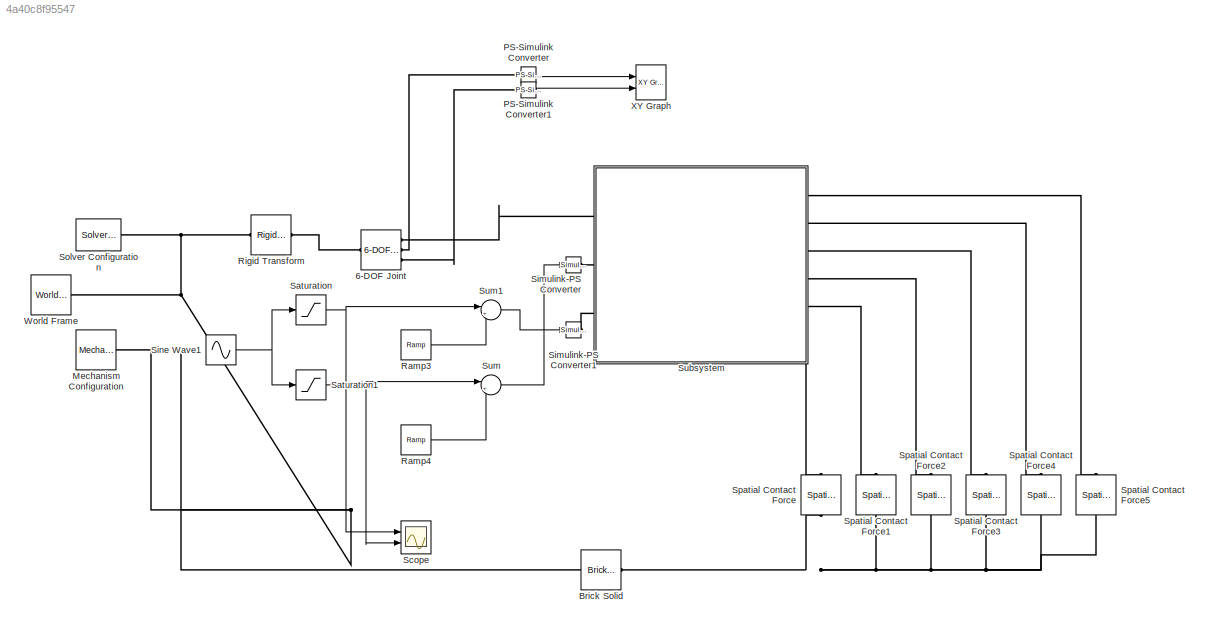
MODEL slx_4a40c8f95547
KIND model
CONFIG AbsTol = auto
CONFIG EnableMultiTasking = off
CONFIG FixedStep = 0.001
CONFIG MaxStep = auto
CONFIG MinStep = auto
CONFIG RelTol = 1e-3
CONFIG SampleTimeConstraint = Unconstrained
CONFIG SolverName = FixedStepAuto
CONFIG StartTime = 0.0
CONFIG StopTime = 20
BLOCK [Reference] 6-DOF Joint  REF=sm_lib/Joints/6-DOF Joint
  Ports = [0, 0, 0, 0, 0, 1, 3]
  SourceBlock = sm_lib/Joints/6-DOF Joint
  SourceProductBaseCode = MS
  SourceType = 6-DOF Joint
BLOCK [Reference] Brick Solid  REF=sm_lib/Body Elements/Brick Solid
  NameLocation = top
  Ports = [0, 0, 0, 0, 0, 1, 1]
  SourceBlock = sm_lib/Body Elements/Brick Solid
  SourceProductBaseCode = MS
  SourceType = Brick Solid
BLOCK [Reference] Mechanism Configuration  REF=sm_lib/Utilities/Mechanism
Configuration
  Ports = [0, 0, 0, 0, 0, 0, 1]
  SourceBlock = sm_lib/Utilities/Mechanism\nConfiguration
  SourceProductBaseCode = MS
  SourceType = Mechanism\nConfiguration
BLOCK [Reference] PS-Simulink Converter  REF=nesl_utility/PS-Simulink
Converter
  Ports = [0, 1, 0, 0, 0, 1]
  SourceBlock = nesl_utility/PS-Simulink\nConverter
  SourceProductBaseCode = SS
  SourceType = PS-Simulink\nConverter
BLOCK [Reference] PS-Simulink Converter1  REF=nesl_utility/PS-Simulink
Converter
  Ports = [0, 1, 0, 0, 0, 1]
  SourceBlock = nesl_utility/PS-Simulink\nConverter
  SourceProductBaseCode = SS
  SourceType = PS-Simulink\nConverter
BLOCK [Reference] Ramp3  REF=simulink/Sources/Ramp
  Ports = [0, 1]
  SourceBlock = simulink/Sources/Ramp
  SourceProductBaseCode = SL
  SourceType = Ramp
BLOCK [Reference] Ramp4  REF=simulink/Sources/Ramp
  Ports = [0, 1]
  SourceBlock = simulink/Sources/Ramp
  SourceProductBaseCode = SL
  SourceType = Ramp
BLOCK [Reference] Rigid Transform  REF=sm_lib/Frames and
Transforms/Rigid
Transform
  NameLocation = top
  Ports = [0, 0, 0, 0, 0, 1, 1]
  SourceBlock = sm_lib/Frames and\nTransforms/Rigid\nTransform
  SourceProductBaseCode = MS
  SourceType = Rigid\nTransform
BLOCK [Saturate] Saturation
  LowerLimit = 0
  UpperLimit = 10
BLOCK [Saturate] Saturation1
  LowerLimit = -10
  UpperLimit = 0
BLOCK [Scope] Scope
  Floating = off
  NumInputPorts = 2
  Ports = [2]
  ScopeSpecificationString = Simulink.scopes.TimeScopeBlockCfg('CurrentConfiguration', extmgr.ConfigurationSet(extmgr.Configuration('Core','General UI',true),extmgr.Configuration('Core','Source UI',true),extmgr.Configuration('Sources','WiredSimulink',true,'DataLoggingVariableName','ScopeData1'),extmgr.Configuration('Visuals','Time Domain',true,'SerializedDisplays',{struct('MinYLimReal','-0.38407','MaxYLimReal','1.15238','YLab...<+1445ch>
BLOCK [Reference] Simulink-PS Converter  REF=nesl_utility/Simulink-PS
Converter
  Ports = [1, 0, 0, 0, 0, 0, 1]
  SourceBlock = nesl_utility/Simulink-PS\nConverter
  SourceProductBaseCode = SS
  SourceType = Simulink-PS\nConverter
BLOCK [Reference] Simulink-PS Converter1  REF=nesl_utility/Simulink-PS
Converter
  Ports = [1, 0, 0, 0, 0, 0, 1]
  SourceBlock = nesl_utility/Simulink-PS\nConverter
  SourceProductBaseCode = SS
  SourceType = Simulink-PS\nConverter
BLOCK [Sin] Sine Wave1
  Amplitude = 10
  Ports = [0, 1]
  SampleTime = 0
BLOCK [Reference] Solver Configuration  REF=nesl_utility/Solver
Configuration
  Ports = [0, 0, 0, 0, 0, 0, 1]
  SourceBlock = nesl_utility/Solver\nConfiguration
  SourceProductBaseCode = SS
  SourceType = Solver\nConfiguration
BLOCK [Reference] Spatial Contact Force  REF=sm_lib/Forces and
Torques/Spatial
Contact Force
  NameLocation = right
  Ports = [0, 0, 0, 0, 0, 1, 1]
  SourceBlock = sm_lib/Forces and\nTorques/Spatial\nContact Force
  SourceProductBaseCode = MS
  SourceType = Spatial\nContact Force
BLOCK [Reference] Spatial Contact Force1  REF=sm_lib/Forces and
Torques/Spatial
Contact Force
  NameLocation = right
  Ports = [0, 0, 0, 0, 0, 1, 1]
  SourceBlock = sm_lib/Forces and\nTorques/Spatial\nContact Force
  SourceProductBaseCode = MS
  SourceType = Spatial\nContact Force
BLOCK [Reference] Spatial Contact Force2  REF=sm_lib/Forces and
Torques/Spatial
Contact Force
  NameLocation = right
  Ports = [0, 0, 0, 0, 0, 1, 1]
  SourceBlock = sm_lib/Forces and\nTorques/Spatial\nContact Force
  SourceProductBaseCode = MS
  SourceType = Spatial\nContact Force
BLOCK [Reference] Spatial Contact Force3  REF=sm_lib/Forces and
Torques/Spatial
Contact Force
  NameLocation = right
  Ports = [0, 0, 0, 0, 0, 1, 1]
  SourceBlock = sm_lib/Forces and\nTorques/Spatial\nContact Force
  SourceProductBaseCode = MS
  SourceType = Spatial\nContact Force
BLOCK [Reference] Spatial Contact Force4  REF=sm_lib/Forces and
Torques/Spatial
Contact Force
  NameLocation = right
  Ports = [0, 0, 0, 0, 0, 1, 1]
  SourceBlock = sm_lib/Forces and\nTorques/Spatial\nContact Force
  SourceProductBaseCode = MS
  SourceType = Spatial\nContact Force
BLOCK [Reference] Spatial Contact Force5  REF=sm_lib/Forces and
Torques/Spatial
Contact Force
  NameLocation = right
  Ports = [0, 0, 0, 0, 0, 1, 1]
  SourceBlock = sm_lib/Forces and\nTorques/Spatial\nContact Force
  SourceProductBaseCode = MS
  SourceType = Spatial\nContact Force
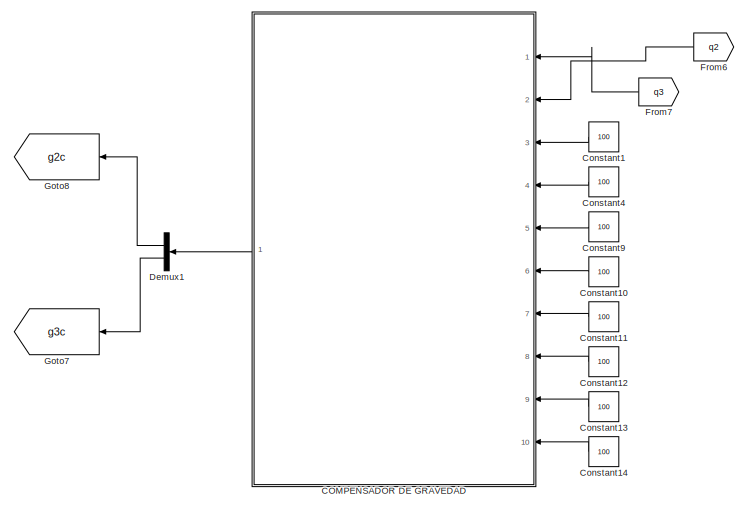
[diagram: Subsystem - part 1/6, top center region]
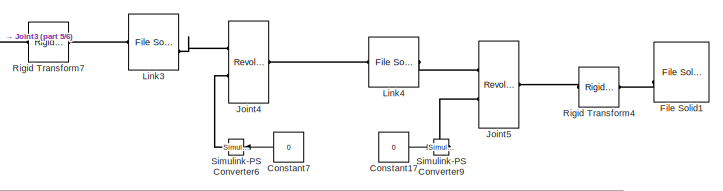
[diagram: Subsystem - part 2/6, top right region]
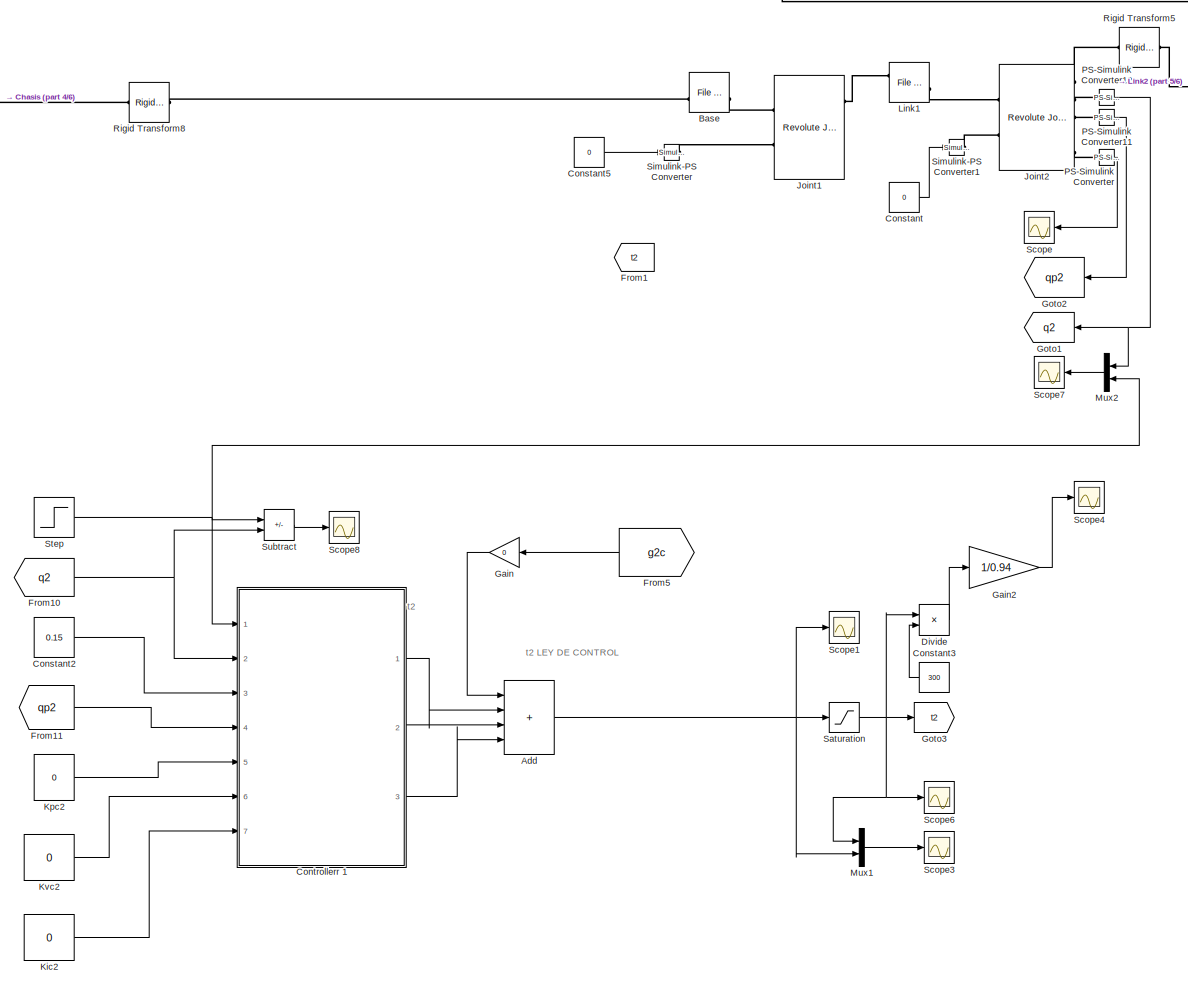
[diagram: Subsystem - part 3/6, central region]
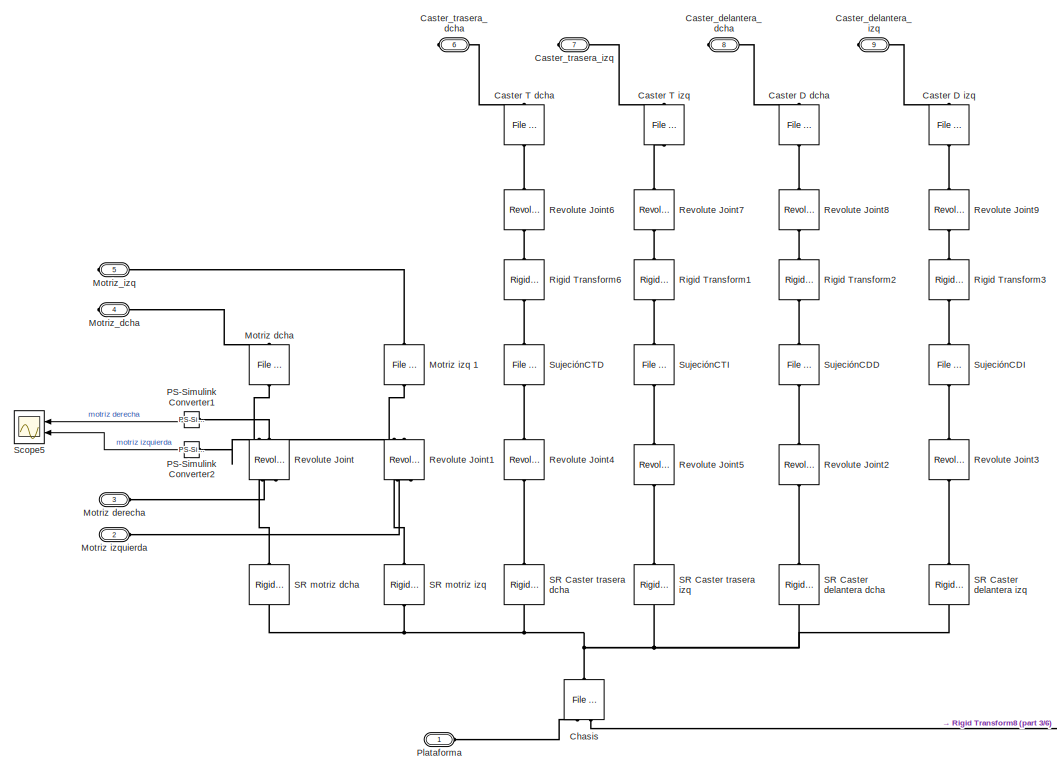
[diagram: Subsystem - part 4/6, central region]
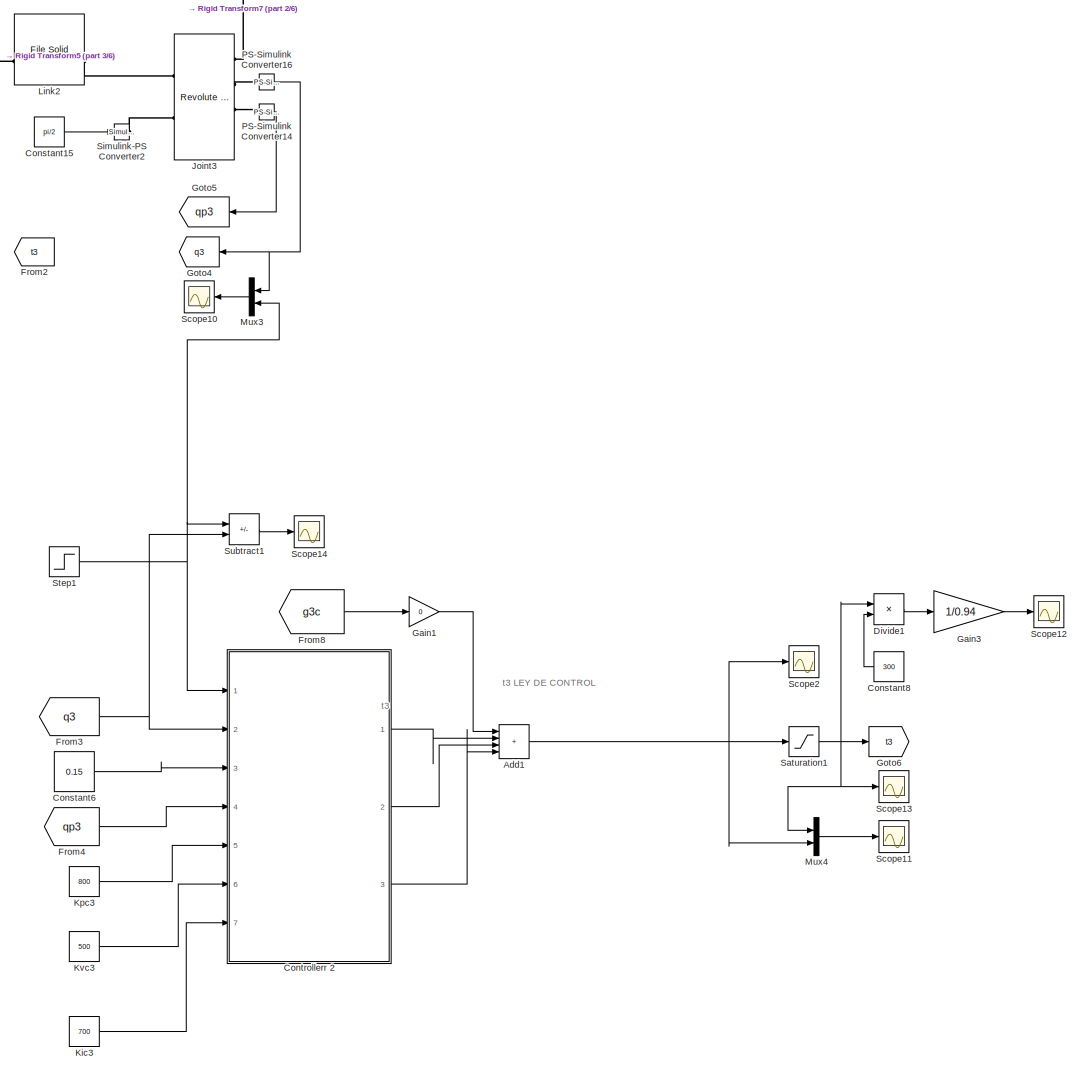
[diagram: Subsystem - part 5/6, middle right region]
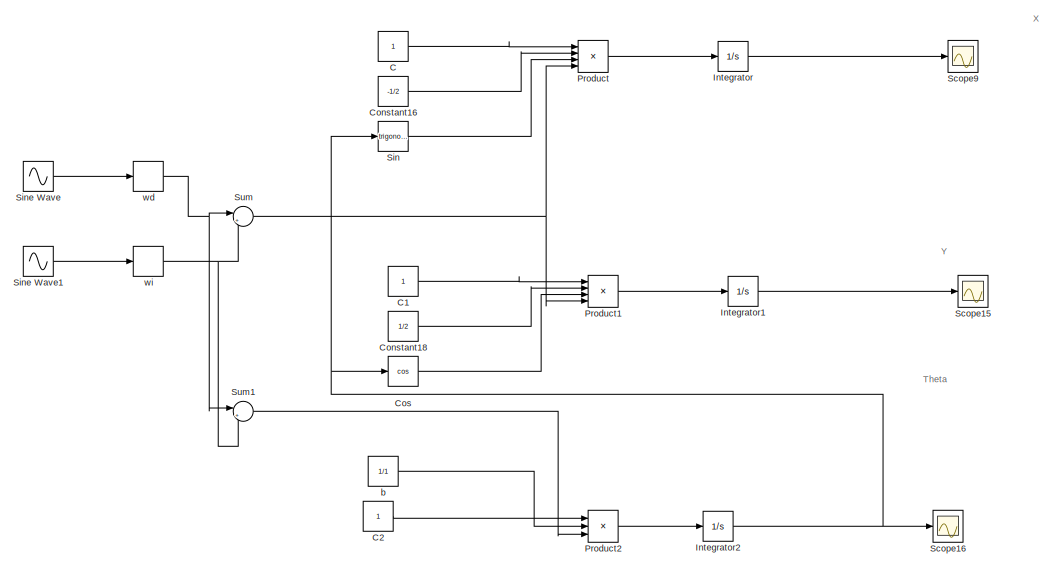
[diagram: Subsystem - part 6/6, bottom left region]
BLOCK [SubSystem] Subsystem
  Ports = [0, 0, 0, 0, 0, 3, 6]
  RequestExecContextInheritance = off
BLOCK [Sum] Subsystem/Add
  IconShape = rectangular
  Inputs = ++++
  Ports = [4, 1]
BLOCK [Sum] Subsystem/Add1
  IconShape = rectangular
  Inputs = ++++
  Ports = [4, 1]
BLOCK [Reference] Subsystem/Base  REF=sm_lib/Body Elements/File Solid
  Ports = [0, 0, 0, 0, 0, 2, 2]
  SourceBlock = sm_lib/Body Elements/File Solid
  SourceProductBaseCode = MS
  SourceType = File Solid
BLOCK [Constant] Subsystem/C
BLOCK [Constant] Subsystem/C1
BLOCK [Constant] Subsystem/C2
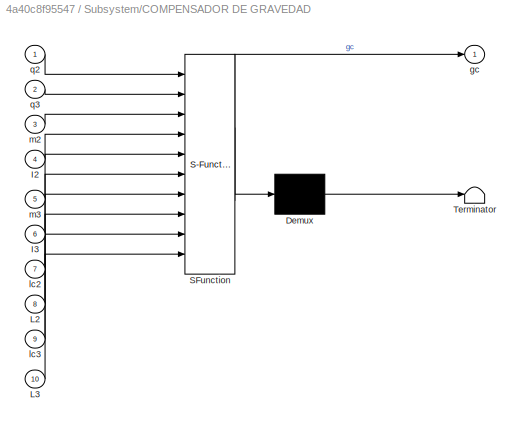
BLOCK [SubSystem] Subsystem/COMPENSADOR DE GRAVEDAD
  ErrorFcn = Stateflow.Translate.translate
  PermitHierarchicalResolution = ExplicitOnly
  Ports = [10, 1]
  RequestExecContextInheritance = off
  SFBlockType = MATLAB Function
  TreatAsAtomicUnit = on
BLOCK [Demux] Subsystem/COMPENSADOR DE GRAVEDAD/ Demux 
  Outputs = 1
  Ports = [1, 1]
BLOCK [S-Function] Subsystem/COMPENSADOR DE GRAVEDAD/ SFunction 
  EnableBusSupport = on
  FunctionName = sf_sfun
  PortCounts = [10 2]
  Ports = [10, 2]
  SFcnIsStateOwnerBlock = off
  SFunctionDeploymentMode = off
  Tag = Stateflow S-Function 1
BLOCK [Terminator] Subsystem/COMPENSADOR DE GRAVEDAD/ Terminator 
BLOCK [Inport] Subsystem/COMPENSADOR DE GRAVEDAD/I2
  Port = 4
BLOCK [Inport] Subsystem/COMPENSADOR DE GRAVEDAD/I3
  Port = 6
BLOCK [Inport] Subsystem/COMPENSADOR DE GRAVEDAD/L2
  Port = 8
BLOCK [Inport] Subsystem/COMPENSADOR DE GRAVEDAD/L3
  Port = 10
BLOCK [Outport] Subsystem/COMPENSADOR DE GRAVEDAD/gc
  VectorParamsAs1DForOutWhenUnconnected = off
BLOCK [Inport] Subsystem/COMPENSADOR DE GRAVEDAD/lc2
  Port = 7
BLOCK [Inport] Subsystem/COMPENSADOR DE GRAVEDAD/lc3
  Port = 9
BLOCK [Inport] Subsystem/COMPENSADOR DE GRAVEDAD/m2
  Port = 3
BLOCK [Inport] Subsystem/COMPENSADOR DE GRAVEDAD/m3
  Port = 5
BLOCK [Inport] Subsystem/COMPENSADOR DE GRAVEDAD/q2
BLOCK [Inport] Subsystem/COMPENSADOR DE GRAVEDAD/q3
  Port = 2
BLOCK [Reference] Subsystem/Caster D dcha  REF=sm_lib/Body Elements/File Solid
  NameLocation = right
  Ports = [0, 0, 0, 0, 0, 1, 1]
  SourceBlock = sm_lib/Body Elements/File Solid
  SourceProductBaseCode = MS
  SourceType = File Solid
BLOCK [Reference] Subsystem/Caster D izq  REF=sm_lib/Body Elements/File Solid
  NameLocation = right
  Ports = [0, 0, 0, 0, 0, 1, 1]
  SourceBlock = sm_lib/Body Elements/File Solid
  SourceProductBaseCode = MS
  SourceType = File Solid
BLOCK [Reference] Subsystem/Caster T dcha  REF=sm_lib/Body Elements/File Solid
  NameLocation = right
  Ports = [0, 0, 0, 0, 0, 1, 1]
  SourceBlock = sm_lib/Body Elements/File Solid
  SourceProductBaseCode = MS
  SourceType = File Solid
BLOCK [Reference] Subsystem/Caster T izq   REF=sm_lib/Body Elements/File Solid
  NameLocation = right
  Ports = [0, 0, 0, 0, 0, 1, 1]
  SourceBlock = sm_lib/Body Elements/File Solid
  SourceProductBaseCode = MS
  SourceType = File Solid
BLOCK [PMIOPort] Subsystem/Caster_delantera_dcha
  Port = 8
  Side = Right
BLOCK [PMIOPort] Subsystem/Caster_delantera_izq
  Port = 9
  Side = Right
BLOCK [PMIOPort] Subsystem/Caster_trasera_dcha
  Port = 6
  Side = Right
BLOCK [PMIOPort] Subsystem/Caster_trasera_izq
  Port = 7
  Side = Right
BLOCK [Reference] Subsystem/Chasis  REF=sm_lib/Body Elements/File Solid
  NameLocation = right
  Ports = [0, 0, 0, 0, 0, 2, 1]
  SourceBlock = sm_lib/Body Elements/File Solid
  SourceProductBaseCode = MS
  SourceType = File Solid
BLOCK [Constant] Subsystem/Constant
  Value = 0
BLOCK [Constant] Subsystem/Constant1
  Value = 100
BLOCK [Constant] Subsystem/Constant10
  Value = 100
BLOCK [Constant] Subsystem/Constant11
  Value = 100
BLOCK [Constant] Subsystem/Constant12
  Value = 100
BLOCK [Constant] Subsystem/Constant13
  Value = 100
BLOCK [Constant] Subsystem/Constant14
  Value = 100
BLOCK [Constant] Subsystem/Constant15
  Value = pi/2
BLOCK [Constant] Subsystem/Constant16
  Value = -1/2
BLOCK [Constant] Subsystem/Constant17
  Value = 0
BLOCK [Constant] Subsystem/Constant18
  Value = 1/2
BLOCK [Constant] Subsystem/Constant2
  Value = 0.15
BLOCK [Constant] Subsystem/Constant3
  Value = 300
BLOCK [Constant] Subsystem/Constant4
  Value = 100
BLOCK [Constant] Subsystem/Constant5
  Value = 0
BLOCK [Constant] Subsystem/Constant6
  Value = 0.15
BLOCK [Constant] Subsystem/Constant7
  Value = 0
BLOCK [Constant] Subsystem/Constant8
  Value = 300
BLOCK [Constant] Subsystem/Constant9
  Value = 100
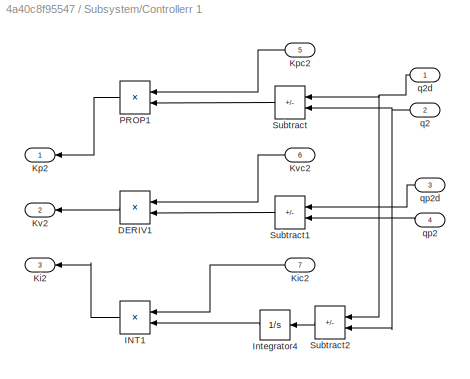
BLOCK [SubSystem] Subsystem/Controllerr 1
  Ports = [7, 3]
  RequestExecContextInheritance = off
BLOCK [Product] Subsystem/Controllerr 1/DERIV1
  Ports = [2, 1]
BLOCK [Product] Subsystem/Controllerr 1/INT1
  Ports = [2, 1]
BLOCK [Integrator] Subsystem/Controllerr 1/Integrator4
  Ports = [1, 1]
BLOCK [Outport] Subsystem/Controllerr 1/Ki2
  Port = 3
  VectorParamsAs1DForOutWhenUnconnected = off
BLOCK [Inport] Subsystem/Controllerr 1/Kic2
  Port = 7
BLOCK [Outport] Subsystem/Controllerr 1/Kp2
  VectorParamsAs1DForOutWhenUnconnected = off
BLOCK [Inport] Subsystem/Controllerr 1/Kpc2
  Port = 5
BLOCK [Outport] Subsystem/Controllerr 1/Kv2
  Port = 2
  VectorParamsAs1DForOutWhenUnconnected = off
BLOCK [Inport] Subsystem/Controllerr 1/Kvc2
  Port = 6
BLOCK [Product] Subsystem/Controllerr 1/PROP1
  Ports = [2, 1]
BLOCK [Sum] Subsystem/Controllerr 1/Subtract
  IconShape = rectangular
  Inputs = +-
  Ports = [2, 1]
BLOCK [Sum] Subsystem/Controllerr 1/Subtract1
  IconShape = rectangular
  Inputs = +-
  Ports = [2, 1]
BLOCK [Sum] Subsystem/Controllerr 1/Subtract2
  IconShape = rectangular
  Inputs = +-
  Ports = [2, 1]
BLOCK [Inport] Subsystem/Controllerr 1/q2
  Port = 2
BLOCK [Inport] Subsystem/Controllerr 1/q2d
BLOCK [Inport] Subsystem/Controllerr 1/qp2
  Port = 4
BLOCK [Inport] Subsystem/Controllerr 1/qp2d
  Port = 3
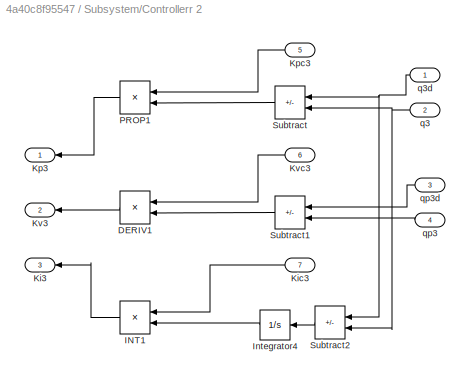
BLOCK [SubSystem] Subsystem/Controllerr 2
  Ports = [7, 3]
  RequestExecContextInheritance = off
BLOCK [Product] Subsystem/Controllerr 2/DERIV1
  Ports = [2, 1]
BLOCK [Product] Subsystem/Controllerr 2/INT1
  Ports = [2, 1]
BLOCK [Integrator] Subsystem/Controllerr 2/Integrator4
  Ports = [1, 1]
BLOCK [Outport] Subsystem/Controllerr 2/Ki3
  Port = 3
  VectorParamsAs1DForOutWhenUnconnected = off
BLOCK [Inport] Subsystem/Controllerr 2/Kic3
  Port = 7
BLOCK [Outport] Subsystem/Controllerr 2/Kp3
  VectorParamsAs1DForOutWhenUnconnected = off
BLOCK [Inport] Subsystem/Controllerr 2/Kpc3
  Port = 5
BLOCK [Outport] Subsystem/Controllerr 2/Kv3
  Port = 2
  VectorParamsAs1DForOutWhenUnconnected = off
BLOCK [Inport] Subsystem/Controllerr 2/Kvc3
  Port = 6
BLOCK [Product] Subsystem/Controllerr 2/PROP1
  Ports = [2, 1]
BLOCK [Sum] Subsystem/Controllerr 2/Subtract
  IconShape = rectangular
  Inputs = +-
  Ports = [2, 1]
BLOCK [Sum] Subsystem/Controllerr 2/Subtract1
  IconShape = rectangular
  Inputs = +-
  Ports = [2, 1]
BLOCK [Sum] Subsystem/Controllerr 2/Subtract2
  IconShape = rectangular
  Inputs = +-
  Ports = [2, 1]
BLOCK [Inport] Subsystem/Controllerr 2/q3
  Port = 2
BLOCK [Inport] Subsystem/Controllerr 2/q3d
BLOCK [Inport] Subsystem/Controllerr 2/qp3
  Port = 4
BLOCK [Inport] Subsystem/Controllerr 2/qp3d
  Port = 3
BLOCK [Trigonometry] Subsystem/Cos
  Operator = cos
  Ports = [1, 1]
BLOCK [Demux] Subsystem/Demux1
  Outputs = 2
  Ports = [1, 2]
BLOCK [Product] Subsystem/Divide
  Inputs = */
  Ports = [2, 1]
BLOCK [Product] Subsystem/Divide1
  Inputs = */
  Ports = [2, 1]
BLOCK [Reference] Subsystem/File Solid1  REF=sm_lib/Body Elements/File Solid
  Ports = [0, 0, 0, 0, 0, 2, 1]
  SourceBlock = sm_lib/Body Elements/File Solid
  SourceProductBaseCode = MS
  SourceType = File Solid
BLOCK [From] Subsystem/From1
  Commented = on
  GotoTag = t2
BLOCK [From] Subsystem/From10
  GotoTag = q2
BLOCK [From] Subsystem/From11
  GotoTag = qp2
BLOCK [From] Subsystem/From2
  Commented = on
  GotoTag = t3
BLOCK [From] Subsystem/From3
  GotoTag = q3
BLOCK [From] Subsystem/From4
  GotoTag = qp3
BLOCK [From] Subsystem/From5
  GotoTag = g2c
BLOCK [From] Subsystem/From6
  GotoTag = q2
BLOCK [From] Subsystem/From7
  GotoTag = q3
BLOCK [From] Subsystem/From8
  GotoTag = g3c
BLOCK [Gain] Subsystem/Gain
  Gain = 0
BLOCK [Gain] Subsystem/Gain1
  Gain = 0
BLOCK [Gain] Subsystem/Gain2
  Gain = 1/0.94
BLOCK [Gain] Subsystem/Gain3
  Gain = 1/0.94
BLOCK [Goto] Subsystem/Goto1
  GotoTag = q2
  NameLocation = top
BLOCK [Goto] Subsystem/Goto2
  GotoTag = qp2
  NameLocation = top
BLOCK [Goto] Subsystem/Goto3
  GotoTag = t2
BLOCK [Goto] Subsystem/Goto4
  GotoTag = q3
  NameLocation = top
BLOCK [Goto] Subsystem/Goto5
  GotoTag = qp3
  NameLocation = top
BLOCK [Goto] Subsystem/Goto6
  GotoTag = t3
BLOCK [Goto] Subsystem/Goto7
  GotoTag = g3c
BLOCK [Goto] Subsystem/Goto8
  GotoTag = g2c
BLOCK [Integrator] Subsystem/Integrator
  Ports = [1, 1]
BLOCK [Integrator] Subsystem/Integrator1
  Ports = [1, 1]
BLOCK [Integrator] Subsystem/Integrator2
  Ports = [1, 1]
BLOCK [Reference] Subsystem/Joint1  REF=sm_lib/Joints/Revolute Joint
  Ports = [0, 0, 0, 0, 0, 2, 3]
  SourceBlock = sm_lib/Joints/Revolute Joint
  SourceProductBaseCode = MS
  SourceType = Revolute Joint
BLOCK [Reference] Subsystem/Joint2  REF=sm_lib/Joints/Revolute Joint
  Ports = [0, 0, 0, 0, 0, 2, 5]
  SourceBlock = sm_lib/Joints/Revolute Joint
  SourceProductBaseCode = MS
  SourceType = Revolute Joint
BLOCK [Reference] Subsystem/Joint3  REF=sm_lib/Joints/Revolute Joint
  Ports = [0, 0, 0, 0, 0, 2, 4]
  SourceBlock = sm_lib/Joints/Revolute Joint
  SourceProductBaseCode = MS
  SourceType = Revolute Joint
BLOCK [Reference] Subsystem/Joint4  REF=sm_lib/Joints/Revolute Joint
  Ports = [0, 0, 0, 0, 0, 2, 1]
  SourceBlock = sm_lib/Joints/Revolute Joint
  SourceProductBaseCode = MS
  SourceType = Revolute Joint
BLOCK [Reference] Subsystem/Joint5  REF=sm_lib/Joints/Revolute Joint
  Ports = [0, 0, 0, 0, 0, 2, 1]
  SourceBlock = sm_lib/Joints/Revolute Joint
  SourceProductBaseCode = MS
  SourceType = Revolute Joint
BLOCK [Constant] Subsystem/Kic2
  Value = 0
BLOCK [Constant] Subsystem/Kic3
  Value = 700
BLOCK [Constant] Subsystem/Kpc2
  Value = 0
BLOCK [Constant] Subsystem/Kpc3
  Value = 800
BLOCK [Constant] Subsystem/Kvc2
  Value = 0
BLOCK [Constant] Subsystem/Kvc3
  Value = 500
BLOCK [Reference] Subsystem/Link1  REF=sm_lib/Body Elements/File Solid
  Ports = [0, 0, 0, 0, 0, 2, 2]
  SourceBlock = sm_lib/Body Elements/File Solid
  SourceProductBaseCode = MS
  SourceType = File Solid
BLOCK [Reference] Subsystem/Link2  REF=sm_lib/Body Elements/File Solid
  NameLocation = top
  Ports = [0, 0, 0, 0, 0, 2, 2]
  SourceBlock = sm_lib/Body Elements/File Solid
  SourceProductBaseCode = MS
  SourceType = File Solid
BLOCK [Reference] Subsystem/Link3  REF=sm_lib/Body Elements/File Solid
  NameLocation = top
  Ports = [0, 0, 0, 0, 0, 2, 1]
  SourceBlock = sm_lib/Body Elements/File Solid
  SourceProductBaseCode = MS
  SourceType = File Solid
BLOCK [Reference] Subsystem/Link4  REF=sm_lib/Body Elements/File Solid
  NameLocation = top
  Ports = [0, 0, 0, 0, 0, 1, 1]
  SourceBlock = sm_lib/Body Elements/File Solid
  SourceProductBaseCode = MS
  SourceType = File Solid
BLOCK [Reference] Subsystem/Motriz dcha   REF=sm_lib/Body Elements/File Solid
  NameLocation = left
  Ports = [0, 0, 0, 0, 0, 1, 1]
  SourceBlock = sm_lib/Body Elements/File Solid
  SourceProductBaseCode = MS
  SourceType = File Solid
BLOCK [PMIOPort] Subsystem/Motriz derecha
  Port = 3
  Side = Left
BLOCK [Reference] Subsystem/Motriz izq 1  REF=sm_lib/Body Elements/File Solid
  NameLocation = left
  Ports = [0, 0, 0, 0, 0, 1, 1]
  SourceBlock = sm_lib/Body Elements/File Solid
  SourceProductBaseCode = MS
  SourceType = File Solid
BLOCK [PMIOPort] Subsystem/Motriz izquierda
  Port = 2
  Side = Left
BLOCK [PMIOPort] Subsystem/Motriz_dcha
  Port = 4
  Side = Right
BLOCK [PMIOPort] Subsystem/Motriz_izq
  Port = 5
  Side = Right
BLOCK [Mux] Subsystem/Mux1
  DisplayOption = bar
  Inputs = 2
  Ports = [2, 1]
BLOCK [Mux] Subsystem/Mux2
  DisplayOption = bar
  Inputs = 2
  NameLocation = top
  Ports = [2, 1]
BLOCK [Mux] Subsystem/Mux3
  DisplayOption = bar
  Inputs = 2
  NameLocation = top
  Ports = [2, 1]
BLOCK [Mux] Subsystem/Mux4
  DisplayOption = bar
  Inputs = 2
  Ports = [2, 1]
BLOCK [Reference] Subsystem/PS-Simulink Converter  REF=nesl_utility/PS-Simulink
Converter
  Ports = [0, 1, 0, 0, 0, 1]
  SourceBlock = nesl_utility/PS-Simulink\nConverter
  SourceProductBaseCode = SS
  SourceType = PS-Simulink\nConverter
BLOCK [Reference] Subsystem/PS-Simulink Converter1  REF=nesl_utility/PS-Simulink
Converter
  NameLocation = top
  Ports = [0, 1, 0, 0, 0, 1]
  SourceBlock = nesl_utility/PS-Simulink\nConverter
  SourceProductBaseCode = SS
  SourceType = PS-Simulink\nConverter
BLOCK [Reference] Subsystem/PS-Simulink Converter11  REF=nesl_utility/PS-Simulink
Converter
  Ports = [0, 1, 0, 0, 0, 1]
  SourceBlock = nesl_utility/PS-Simulink\nConverter
  SourceProductBaseCode = SS
  SourceType = PS-Simulink\nConverter
BLOCK [Reference] Subsystem/PS-Simulink Converter12  REF=nesl_utility/PS-Simulink
Converter
  Ports = [0, 1, 0, 0, 0, 1]
  SourceBlock = nesl_utility/PS-Simulink\nConverter
  SourceProductBaseCode = SS
  SourceType = PS-Simulink\nConverter
BLOCK [Reference] Subsystem/PS-Simulink Converter14  REF=nesl_utility/PS-Simulink
Converter
  Ports = [0, 1, 0, 0, 0, 1]
  SourceBlock = nesl_utility/PS-Simulink\nConverter
  SourceProductBaseCode = SS
  SourceType = PS-Simulink\nConverter
BLOCK [Reference] Subsystem/PS-Simulink Converter16  REF=nesl_utility/PS-Simulink
Converter
  NameLocation = left
  Ports = [0, 1, 0, 0, 0, 1]
  SourceBlock = nesl_utility/PS-Simulink\nConverter
  SourceProductBaseCode = SS
  SourceType = PS-Simulink\nConverter
BLOCK [Reference] Subsystem/PS-Simulink Converter2  REF=nesl_utility/PS-Simulink
Converter
  NameLocation = top
  Ports = [0, 1, 0, 0, 0, 1]
  SourceBlock = nesl_utility/PS-Simulink\nConverter
  SourceProductBaseCode = SS
  SourceType = PS-Simulink\nConverter
BLOCK [PMIOPort] Subsystem/Plataforma
  Side = Left
BLOCK [Product] Subsystem/Product
  Inputs = 4
  Ports = [4, 1]
BLOCK [Product] Subsystem/Product1
  Inputs = 4
  Ports = [4, 1]
BLOCK [Product] Subsystem/Product2
  Inputs = 3
  Ports = [3, 1]
BLOCK [Reference] Subsystem/Revolute Joint  REF=sm_lib/Joints/Revolute Joint
  NameLocation = right
  Ports = [0, 0, 0, 0, 0, 2, 3]
  SourceBlock = sm_lib/Joints/Revolute Joint
  SourceProductBaseCode = MS
  SourceType = Revolute Joint
BLOCK [Reference] Subsystem/Revolute Joint1  REF=sm_lib/Joints/Revolute Joint
  NameLocation = right
  Ports = [0, 0, 0, 0, 0, 2, 3]
  SourceBlock = sm_lib/Joints/Revolute Joint
  SourceProductBaseCode = MS
  SourceType = Revolute Joint
BLOCK [Reference] Subsystem/Revolute Joint2  REF=sm_lib/Joints/Revolute Joint
  NameLocation = right
  Ports = [0, 0, 0, 0, 0, 1, 1]
  SourceBlock = sm_lib/Joints/Revolute Joint
  SourceProductBaseCode = MS
  SourceType = Revolute Joint
BLOCK [Reference] Subsystem/Revolute Joint3  REF=sm_lib/Joints/Revolute Joint
  NameLocation = right
  Ports = [0, 0, 0, 0, 0, 1, 1]
  SourceBlock = sm_lib/Joints/Revolute Joint
  SourceProductBaseCode = MS
  SourceType = Revolute Joint
BLOCK [Reference] Subsystem/Revolute Joint4  REF=sm_lib/Joints/Revolute Joint
  NameLocation = right
  Ports = [0, 0, 0, 0, 0, 1, 1]
  SourceBlock = sm_lib/Joints/Revolute Joint
  SourceProductBaseCode = MS
  SourceType = Revolute Joint
BLOCK [Reference] Subsystem/Revolute Joint5  REF=sm_lib/Joints/Revolute Joint
  NameLocation = right
  Ports = [0, 0, 0, 0, 0, 1, 1]
  SourceBlock = sm_lib/Joints/Revolute Joint
  SourceProductBaseCode = MS
  SourceType = Revolute Joint
BLOCK [Reference] Subsystem/Revolute Joint6  REF=sm_lib/Joints/Revolute Joint
  NameLocation = right
  Ports = [0, 0, 0, 0, 0, 1, 1]
  SourceBlock = sm_lib/Joints/Revolute Joint
  SourceProductBaseCode = MS
  SourceType = Revolute Joint
BLOCK [Reference] Subsystem/Revolute Joint7  REF=sm_lib/Joints/Revolute Joint
  NameLocation = right
  Ports = [0, 0, 0, 0, 0, 1, 1]
  SourceBlock = sm_lib/Joints/Revolute Joint
  SourceProductBaseCode = MS
  SourceType = Revolute Joint
BLOCK [Reference] Subsystem/Revolute Joint8  REF=sm_lib/Joints/Revolute Joint
  NameLocation = right
  Ports = [0, 0, 0, 0, 0, 1, 1]
  SourceBlock = sm_lib/Joints/Revolute Joint
  SourceProductBaseCode = MS
  SourceType = Revolute Joint
BLOCK [Reference] Subsystem/Revolute Joint9  REF=sm_lib/Joints/Revolute Joint
  NameLocation = right
  Ports = [0, 0, 0, 0, 0, 1, 1]
  SourceBlock = sm_lib/Joints/Revolute Joint
  SourceProductBaseCode = MS
  SourceType = Revolute Joint
BLOCK [Reference] Subsystem/Rigid Transform1  REF=sm_lib/Frames and
Transforms/Rigid
Transform
  NameLocation = right
  Ports = [0, 0, 0, 0, 0, 1, 1]
  SourceBlock = sm_lib/Frames and\nTransforms/Rigid\nTransform
  SourceProductBaseCode = MS
  SourceType = Rigid\nTransform
BLOCK [Reference] Subsystem/Rigid Transform2  REF=sm_lib/Frames and
Transforms/Rigid
Transform
  NameLocation = right
  Ports = [0, 0, 0, 0, 0, 1, 1]
  SourceBlock = sm_lib/Frames and\nTransforms/Rigid\nTransform
  SourceProductBaseCode = MS
  SourceType = Rigid\nTransform
BLOCK [Reference] Subsystem/Rigid Transform3  REF=sm_lib/Frames and
Transforms/Rigid
Transform
  NameLocation = right
  Ports = [0, 0, 0, 0, 0, 1, 1]
  SourceBlock = sm_lib/Frames and\nTransforms/Rigid\nTransform
  SourceProductBaseCode = MS
  SourceType = Rigid\nTransform
BLOCK [Reference] Subsystem/Rigid Transform4  REF=sm_lib/Frames and
Transforms/Rigid
Transform
  Ports = [0, 0, 0, 0, 0, 1, 1]
  SourceBlock = sm_lib/Frames and\nTransforms/Rigid\nTransform
  SourceProductBaseCode = MS
  SourceType = Rigid\nTransform
BLOCK [Reference] Subsystem/Rigid Transform5  REF=sm_lib/Frames and
Transforms/Rigid
Transform
  Ports = [0, 0, 0, 0, 0, 1, 1]
  SourceBlock = sm_lib/Frames and\nTransforms/Rigid\nTransform
  SourceProductBaseCode = MS
  SourceType = Rigid\nTransform
BLOCK [Reference] Subsystem/Rigid Transform6  REF=sm_lib/Frames and
Transforms/Rigid
Transform
  NameLocation = right
  Ports = [0, 0, 0, 0, 0, 1, 1]
  SourceBlock = sm_lib/Frames and\nTransforms/Rigid\nTransform
  SourceProductBaseCode = MS
  SourceType = Rigid\nTransform
BLOCK [Reference] Subsystem/Rigid Transform7  REF=sm_lib/Frames and
Transforms/Rigid
Transform
  Ports = [0, 0, 0, 0, 0, 1, 1]
  SourceBlock = sm_lib/Frames and\nTransforms/Rigid\nTransform
  SourceProductBaseCode = MS
  SourceType = Rigid\nTransform
BLOCK [Reference] Subsystem/Rigid Transform8  REF=sm_lib/Frames and
Transforms/Rigid
Transform
  Ports = [0, 0, 0, 0, 0, 1, 1]
  SourceBlock = sm_lib/Frames and\nTransforms/Rigid\nTransform
  SourceProductBaseCode = MS
  SourceType = Rigid\nTransform
BLOCK [Reference] Subsystem/SR Caster delantera dcha  REF=sm_lib/Frames and
Transforms/Rigid
Transform
  NameLocation = right
  Ports = [0, 0, 0, 0, 0, 1, 1]
  SourceBlock = sm_lib/Frames and\nTransforms/Rigid\nTransform
  SourceProductBaseCode = MS
  SourceType = Rigid\nTransform
BLOCK [Reference] Subsystem/SR Caster delantera izq  REF=sm_lib/Frames and
Transforms/Rigid
Transform
  NameLocation = right
  Ports = [0, 0, 0, 0, 0, 1, 1]
  SourceBlock = sm_lib/Frames and\nTransforms/Rigid\nTransform
  SourceProductBaseCode = MS
  SourceType = Rigid\nTransform
BLOCK [Reference] Subsystem/SR Caster trasera dcha  REF=sm_lib/Frames and
Transforms/Rigid
Transform
  NameLocation = right
  Ports = [0, 0, 0, 0, 0, 1, 1]
  SourceBlock = sm_lib/Frames and\nTransforms/Rigid\nTransform
  SourceProductBaseCode = MS
  SourceType = Rigid\nTransform
BLOCK [Reference] Subsystem/SR Caster trasera izq  REF=sm_lib/Frames and
Transforms/Rigid
Transform
  NameLocation = right
  Ports = [0, 0, 0, 0, 0, 1, 1]
  SourceBlock = sm_lib/Frames and\nTransforms/Rigid\nTransform
  SourceProductBaseCode = MS
  SourceType = Rigid\nTransform
BLOCK [Reference] Subsystem/SR motriz dcha  REF=sm_lib/Frames and
Transforms/Rigid
Transform
  NameLocation = right
  Ports = [0, 0, 0, 0, 0, 1, 1]
  SourceBlock = sm_lib/Frames and\nTransforms/Rigid\nTransform
  SourceProductBaseCode = MS
  SourceType = Rigid\nTransform
BLOCK [Reference] Subsystem/SR motriz izq  REF=sm_lib/Frames and
Transforms/Rigid
Transform
  NameLocation = right
  Ports = [0, 0, 0, 0, 0, 1, 1]
  SourceBlock = sm_lib/Frames and\nTransforms/Rigid\nTransform
  SourceProductBaseCode = MS
  SourceType = Rigid\nTransform
BLOCK [Saturate] Subsystem/Saturation
  LowerLimit = -1290
  UpperLimit = 1290
BLOCK [Saturate] Subsystem/Saturation1
  LowerLimit = -1290
  UpperLimit = 1290
BLOCK [Scope] Subsystem/Scope
  Floating = off
  NameLocation = top
  NumInputPorts = 1
  Ports = [1]
  ScopeSpecificationString = Simulink.scopes.TimeScopeBlockCfg('CurrentConfiguration', extmgr.ConfigurationSet(extmgr.Configuration('Core','General UI',true),extmgr.Configuration('Core','Source UI',true),extmgr.Configuration('Sources','WiredSimulink',true),extmgr.Configuration('Visuals','Time Domain',true,'SerializedDisplays',{struct('MinYLimReal','3287418562.89593','MaxYLimReal','10705790971.92192','YLabelReal','','MinYLimMa...<+1514ch>
BLOCK [Scope] Subsystem/Scope1
  Floating = off
  NameLocation = top
  NumInputPorts = 1
  Ports = [1]
  ScopeSpecificationString = Simulink.scopes.TimeScopeBlockCfg('CurrentConfiguration', extmgr.ConfigurationSet(extmgr.Configuration('Core','General UI',true),extmgr.Configuration('Core','Source UI',true),extmgr.Configuration('Sources','WiredSimulink',true,'DataLoggingVariableName','ScopeData2'),extmgr.Configuration('Visuals','Time Domain',true,'SerializedDisplays',{struct('MinYLimReal','-1024.93365','MaxYLimReal','1859.21077'...<+1698ch>
BLOCK [Scope] Subsystem/Scope10
  Floating = off
  NumInputPorts = 1
  Ports = [1]
  ScopeSpecificationString = Simulink.scopes.TimeScopeBlockCfg('CurrentConfiguration', extmgr.ConfigurationSet(extmgr.Configuration('Core','General UI',true),extmgr.Configuration('Core','Source UI',true),extmgr.Configuration('Sources','WiredSimulink',true,'DataLoggingVariableName','ScopeData7'),extmgr.Configuration('Visuals','Time Domain',true,'SerializedDisplays',{struct('MinYLimReal','-0.10278','MaxYLimReal','0.92499','YLab...<+1736ch>
BLOCK [Scope] Subsystem/Scope11
  Floating = off
  NameLocation = top
  NumInputPorts = 1
  Ports = [1]
  ScopeSpecificationString = Simulink.scopes.TimeScopeBlockCfg('CurrentConfiguration', extmgr.ConfigurationSet(extmgr.Configuration('Core','General UI',true),extmgr.Configuration('Core','Source UI',true),extmgr.Configuration('Sources','WiredSimulink',true,'DataLoggingVariableName','ScopeData8'),extmgr.Configuration('Visuals','Time Domain',true,'SerializedDisplays',{struct('MinYLimReal','-1024.93365','MaxYLimReal','1859.21077'...<+1744ch>
BLOCK [Scope] Subsystem/Scope12
  Floating = off
  NameLocation = top
  NumInputPorts = 1
  Ports = [1]
  ScopeSpecificationString = Simulink.scopes.TimeScopeBlockCfg('CurrentConfiguration', extmgr.ConfigurationSet(extmgr.Configuration('Core','General UI',true),extmgr.Configuration('Core','Source UI',true),extmgr.Configuration('Sources','WiredSimulink',true,'DataLoggingVariableName','ScopeData9'),extmgr.Configuration('Visuals','Time Domain',true,'SerializedDisplays',{struct('MinYLimReal','-47.06325','MaxYLimReal','47.06325','YL...<+1683ch>
BLOCK [Scope] Subsystem/Scope13
  Floating = off
  NameLocation = top
  NumInputPorts = 1
  Ports = [1]
  ScopeSpecificationString = Simulink.scopes.TimeScopeBlockCfg('CurrentConfiguration', extmgr.ConfigurationSet(extmgr.Configuration('Core','General UI',true),extmgr.Configuration('Core','Source UI',true),extmgr.Configuration('Sources','WiredSimulink',true,'DataLoggingVariableName','ScopeData10'),extmgr.Configuration('Visuals','Time Domain',true,'SerializedDisplays',{struct('MinYLimReal','-625.00000','MaxYLimReal','625.00000',...<+1698ch>
BLOCK [Scope] Subsystem/Scope14
  Floating = off
  NameLocation = top
  NumInputPorts = 1
  Ports = [1]
  ScopeSpecificationString = Simulink.scopes.TimeScopeBlockCfg('CurrentConfiguration', extmgr.ConfigurationSet(extmgr.Configuration('Core','General UI',true),extmgr.Configuration('Core','Source UI',true),extmgr.Configuration('Sources','WiredSimulink',true,'DataLoggingVariableName','ScopeData11'),extmgr.Configuration('Visuals','Time Domain',true,'SerializedDisplays',{struct('MinYLimReal','-0.45103','MaxYLimReal','0.92278','YLa...<+1698ch>
BLOCK [Scope] Subsystem/Scope15
  Floating = off
  NumInputPorts = 1
  Ports = [1]
  ScopeSpecificationString = Simulink.scopes.TimeScopeBlockCfg('CurrentConfiguration', extmgr.ConfigurationSet(extmgr.Configuration('Core','General UI',true),extmgr.Configuration('Core','Source UI',true),extmgr.Configuration('Sources','WiredSimulink',true,'DataLoggingVariableName','ScopeData4'),extmgr.Configuration('Visuals','Time Domain',true,'SerializedDisplays',{struct('MinYLimReal','-1.57765','MaxYLimReal','1.57787','YLab...<+1401ch>
BLOCK [Scope] Subsystem/Scope16
  Floating = off
  NumInputPorts = 1
  Ports = [1]
  ScopeSpecificationString = Simulink.scopes.TimeScopeBlockCfg('CurrentConfiguration', extmgr.ConfigurationSet(extmgr.Configuration('Core','General UI',true),extmgr.Configuration('Core','Source UI',true),extmgr.Configuration('Sources','WiredSimulink',true,'DataLoggingVariableName','ScopeData5'),extmgr.Configuration('Visuals','Time Domain',true,'SerializedDisplays',{struct('MinYLimReal','-1.25014','MaxYLimReal','1.24986','YLab...<+1370ch>
BLOCK [Scope] Subsystem/Scope2
  Floating = off
  NameLocation = top
  NumInputPorts = 1
  Ports = [1]
  ScopeSpecificationString = Simulink.scopes.TimeScopeBlockCfg('CurrentConfiguration', extmgr.ConfigurationSet(extmgr.Configuration('Core','General UI',true),extmgr.Configuration('Core','Source UI',true),extmgr.Configuration('Sources','WiredSimulink',true,'DataLoggingVariableName','ScopeData12'),extmgr.Configuration('Visuals','Time Domain',true,'SerializedDisplays',{struct('MinYLimReal','-1024.93365','MaxYLimReal','1859.21077...<+1699ch>
BLOCK [Scope] Subsystem/Scope3
  Floating = off
  NameLocation = top
  NumInputPorts = 1
  Ports = [1]
  ScopeSpecificationString = Simulink.scopes.TimeScopeBlockCfg('CurrentConfiguration', extmgr.ConfigurationSet(extmgr.Configuration('Core','General UI',true),extmgr.Configuration('Core','Source UI',true),extmgr.Configuration('Sources','WiredSimulink',true,'DataLoggingVariableName','ScopeData3'),extmgr.Configuration('Visuals','Time Domain',true,'SerializedDisplays',{struct('MinYLimReal','-1024.93365','MaxYLimReal','1859.21077'...<+1744ch>
BLOCK [Scope] Subsystem/Scope4
  Floating = off
  NameLocation = top
  NumInputPorts = 1
  Ports = [1]
  ScopeSpecificationString = Simulink.scopes.TimeScopeBlockCfg('CurrentConfiguration', extmgr.ConfigurationSet(extmgr.Configuration('Core','General UI',true),extmgr.Configuration('Core','Source UI',true),extmgr.Configuration('Sources','WiredSimulink',true,'DataLoggingVariableName','ScopeData4'),extmgr.Configuration('Visuals','Time Domain',true,'SerializedDisplays',{struct('MinYLimReal','-47.06325','MaxYLimReal','47.06325','YL...<+1683ch>
BLOCK [Scope] Subsystem/Scope5
  Floating = off
  NameLocation = top
  NumInputPorts = 2
  Ports = [2]
  ScopeSpecificationString = Simulink.scopes.TimeScopeBlockCfg('CurrentConfiguration', extmgr.ConfigurationSet(extmgr.Configuration('Core','General UI',true),extmgr.Configuration('Core','Source UI',true),extmgr.Configuration('Sources','WiredSimulink',true,'DataLoggingVariableName','ScopeData2'),extmgr.Configuration('Visuals','Time Domain',true,'SerializedDisplays',{struct('MinYLimReal','-1.36118','MaxYLimReal','1.85397','YLab...<+1423ch>
BLOCK [Scope] Subsystem/Scope6
  Floating = off
  NameLocation = top
  NumInputPorts = 1
  Ports = [1]
  ScopeSpecificationString = Simulink.scopes.TimeScopeBlockCfg('CurrentConfiguration', extmgr.ConfigurationSet(extmgr.Configuration('Core','General UI',true),extmgr.Configuration('Core','Source UI',true),extmgr.Configuration('Sources','WiredSimulink',true,'DataLoggingVariableName','ScopeData5'),extmgr.Configuration('Visuals','Time Domain',true,'SerializedDisplays',{struct('MinYLimReal','-625.00000','MaxYLimReal','625.00000','...<+1697ch>
BLOCK [Scope] Subsystem/Scope7
  Floating = off
  NumInputPorts = 1
  Ports = [1]
  ScopeSpecificationString = Simulink.scopes.TimeScopeBlockCfg('CurrentConfiguration', extmgr.ConfigurationSet(extmgr.Configuration('Core','General UI',true),extmgr.Configuration('Core','Source UI',true),extmgr.Configuration('Sources','WiredSimulink',true,'DataLoggingVariableName','ScopeData1'),extmgr.Configuration('Visuals','Time Domain',true,'SerializedDisplays',{struct('MinYLimReal','-0.09817','MaxYLimReal','0.88357','YLab...<+1735ch>
BLOCK [Scope] Subsystem/Scope8
  Floating = off
  NameLocation = top
  NumInputPorts = 1
  Ports = [1]
  ScopeSpecificationString = Simulink.scopes.TimeScopeBlockCfg('CurrentConfiguration', extmgr.ConfigurationSet(extmgr.Configuration('Core','General UI',true),extmgr.Configuration('Core','Source UI',true),extmgr.Configuration('Sources','WiredSimulink',true,'DataLoggingVariableName','ScopeData6'),extmgr.Configuration('Visuals','Time Domain',true,'SerializedDisplays',{struct('MinYLimReal','-0.45103','MaxYLimReal','0.92278','YLab...<+1697ch>
BLOCK [Scope] Subsystem/Scope9
  Floating = off
  NumInputPorts = 1
  Ports = [1]
  ScopeSpecificationString = Simulink.scopes.TimeScopeBlockCfg('CurrentConfiguration', extmgr.ConfigurationSet(extmgr.Configuration('Core','General UI',true),extmgr.Configuration('Core','Source UI',true),extmgr.Configuration('Sources','WiredSimulink',true,'DataLoggingVariableName','ScopeData3'),extmgr.Configuration('Visuals','Time Domain',true,'SerializedDisplays',{struct('MinYLimReal','-1.00000','MaxYLimReal','1.00000','YLab...<+1448ch>
BLOCK [Reference] Subsystem/Simulink-PS Converter  REF=nesl_utility/Simulink-PS
Converter
  Ports = [1, 0, 0, 0, 0, 0, 1]
  SourceBlock = nesl_utility/Simulink-PS\nConverter
  SourceProductBaseCode = SS
  SourceType = Simulink-PS\nConverter
BLOCK [Reference] Subsystem/Simulink-PS Converter1  REF=nesl_utility/Simulink-PS
Converter
  Ports = [1, 0, 0, 0, 0, 0, 1]
  SourceBlock = nesl_utility/Simulink-PS\nConverter
  SourceProductBaseCode = SS
  SourceType = Simulink-PS\nConverter
BLOCK [Reference] Subsystem/Simulink-PS Converter2  REF=nesl_utility/Simulink-PS
Converter
  Ports = [1, 0, 0, 0, 0, 0, 1]
  SourceBlock = nesl_utility/Simulink-PS\nConverter
  SourceProductBaseCode = SS
  SourceType = Simulink-PS\nConverter
BLOCK [Reference] Subsystem/Simulink-PS Converter6  REF=nesl_utility/Simulink-PS
Converter
  Ports = [1, 0, 0, 0, 0, 0, 1]
  SourceBlock = nesl_utility/Simulink-PS\nConverter
  SourceProductBaseCode = SS
  SourceType = Simulink-PS\nConverter
BLOCK [Reference] Subsystem/Simulink-PS Converter9  REF=nesl_utility/Simulink-PS
Converter
  Ports = [1, 0, 0, 0, 0, 0, 1]
  SourceBlock = nesl_utility/Simulink-PS\nConverter
  SourceProductBaseCode = SS
  SourceType = Simulink-PS\nConverter
BLOCK [Trigonometry] Subsystem/Sin
  Ports = [1, 1]
BLOCK [Sin] Subsystem/Sine Wave
  Ports = [0, 1]
  SampleTime = 0
BLOCK [Sin] Subsystem/Sine Wave1
  Amplitude = 2
  Ports = [0, 1]
  SampleTime = 0
BLOCK [Step] Subsystem/Step
  After = pi/6
  SampleTime = 0
  Time = 0
BLOCK [Step] Subsystem/Step1
  After = -pi/6
  SampleTime = 0
  Time = 0
BLOCK [Sum] Subsystem/Subtract
  IconShape = rectangular
  Inputs = +-
  Ports = [2, 1]
BLOCK [Sum] Subsystem/Subtract1
  IconShape = rectangular
  Inputs = +-
  Ports = [2, 1]
BLOCK [Reference] Subsystem/SujeciónCDD  REF=sm_lib/Body Elements/File Solid
  NameLocation = left
  Ports = [0, 0, 0, 0, 0, 1, 1]
  SourceBlock = sm_lib/Body Elements/File Solid
  SourceProductBaseCode = MS
  SourceType = File Solid
BLOCK [Reference] Subsystem/SujeciónCDI  REF=sm_lib/Body Elements/File Solid
  NameLocation = left
  Ports = [0, 0, 0, 0, 0, 1, 1]
  SourceBlock = sm_lib/Body Elements/File Solid
  SourceProductBaseCode = MS
  SourceType = File Solid
BLOCK [Reference] Subsystem/SujeciónCTD  REF=sm_lib/Body Elements/File Solid
  NameLocation = left
  Ports = [0, 0, 0, 0, 0, 1, 1]
  SourceBlock = sm_lib/Body Elements/File Solid
  SourceProductBaseCode = MS
  SourceType = File Solid
BLOCK [Reference] Subsystem/SujeciónCTI  REF=sm_lib/Body Elements/File Solid
  NameLocation = left
  Ports = [0, 0, 0, 0, 0, 1, 1]
  SourceBlock = sm_lib/Body Elements/File Solid
  SourceProductBaseCode = MS
  SourceType = File Solid
BLOCK [Sum] Subsystem/Sum
  Inputs = |++
  Ports = [2, 1]
BLOCK [Sum] Subsystem/Sum1
  Inputs = |+-
  Ports = [2, 1]
BLOCK [Constant] Subsystem/b
  Value = 1/1
BLOCK [Derivative] Subsystem/wd
BLOCK [Derivative] Subsystem/wi
BLOCK [Sum] Sum
  Inputs = |++
  Ports = [2, 1]
BLOCK [Sum] Sum1
  Inputs = |++
  Ports = [2, 1]
BLOCK [Reference] World Frame  REF=sm_lib/Frames and
Transforms/World Frame
  Ports = [0, 0, 0, 0, 0, 0, 1]
  SourceBlock = sm_lib/Frames and\nTransforms/World Frame
  SourceProductBaseCode = MS
  SourceType = World Frame
BLOCK [Reference] XY Graph  REF=simulink/Sinks/XY Graph
  Ports = [2]
  SourceBlock = simulink/Sinks/XY Graph
  SourceProductBaseCode = SL
  SourceType = XY scope.
ANNOTATION Subsystem: t2
ANNOTATION Subsystem: t3
ANNOTATION Subsystem: t 2 LEY DE CONTROL
ANNOTATION Subsystem: t 3 LEY DE CONTROL
ANNOTATION Subsystem: Theta
ANNOTATION Subsystem: X
ANNOTATION Subsystem: Y
LINE PS-Simulink Converter1:1 -> XY Graph:2
LINE PS-Simulink Converter:1 -> XY Graph:1
LINE Ramp3:1 -> Sum1:2
LINE Ramp4:1 -> Sum:2
NET Saturation1:1 -> Scope:2, Sum:1
NET Saturation:1 -> Scope:1, Sum1:1
NET Sine Wave1:1 -> Saturation1:1, Saturation:1
NET Subsystem/Add1:1 -> Subsystem/Mux4:2, Subsystem/Saturation1:1, Subsystem/Scope2:1
NET Subsystem/Add:1 -> Subsystem/Mux1:2, Subsystem/Saturation:1, Subsystem/Scope1:1
LINE Subsystem/C1:1 -> Subsystem/Product1:1
LINE Subsystem/C2:1 -> Subsystem/Product2:1
LINE Subsystem/C:1 -> Subsystem/Product:1
LINE Subsystem/COMPENSADOR DE GRAVEDAD:1 -> Subsystem/Demux1:1
LINE Subsystem/Constant10:1 -> Subsystem/COMPENSADOR DE GRAVEDAD:6
LINE Subsystem/Constant11:1 -> Subsystem/COMPENSADOR DE GRAVEDAD:7
LINE Subsystem/Constant12:1 -> Subsystem/COMPENSADOR DE GRAVEDAD:8
LINE Subsystem/Constant13:1 -> Subsystem/COMPENSADOR DE GRAVEDAD:9
LINE Subsystem/Constant14:1 -> Subsystem/COMPENSADOR DE GRAVEDAD:10
LINE Subsystem/Constant15:1 -> Subsystem/Simulink-PS Converter2:1
LINE Subsystem/Constant16:1 -> Subsystem/Product:2
LINE Subsystem/Constant17:1 -> Subsystem/Simulink-PS Converter9:1
LINE Subsystem/Constant18:1 -> Subsystem/Product1:2
LINE Subsystem/Constant1:1 -> Subsystem/COMPENSADOR DE GRAVEDAD:3
LINE Subsystem/Constant2:1 -> Subsystem/Controllerr 1:3
LINE Subsystem/Constant3:1 -> Subsystem/Divide:2
LINE Subsystem/Constant4:1 -> Subsystem/COMPENSADOR DE GRAVEDAD:4
LINE Subsystem/Constant5:1 -> Subsystem/Simulink-PS Converter:1
LINE Subsystem/Constant6:1 -> Subsystem/Controllerr 2:3
LINE Subsystem/Constant7:1 -> Subsystem/Simulink-PS Converter6:1
LINE Subsystem/Constant8:1 -> Subsystem/Divide1:2
LINE Subsystem/Constant9:1 -> Subsystem/COMPENSADOR DE GRAVEDAD:5
LINE Subsystem/Constant:1 -> Subsystem/Simulink-PS Converter1:1
LINE Subsystem/Controllerr 1/DERIV1:1 -> Subsystem/Controllerr 1/Kv2:1
LINE Subsystem/Controllerr 1/INT1:1 -> Subsystem/Controllerr 1/Ki2:1
LINE Subsystem/Controllerr 1/Integrator4:1 -> Subsystem/Controllerr 1/INT1:2
LINE Subsystem/Controllerr 1/Kic2:1 -> Subsystem/Controllerr 1/INT1:1
LINE Subsystem/Controllerr 1/Kpc2:1 -> Subsystem/Controllerr 1/PROP1:1
LINE Subsystem/Controllerr 1/Kvc2:1 -> Subsystem/Controllerr 1/DERIV1:1
LINE Subsystem/Controllerr 1/PROP1:1 -> Subsystem/Controllerr 1/Kp2:1
LINE Subsystem/Controllerr 1/Subtract1:1 -> Subsystem/Controllerr 1/DERIV1:2
LINE Subsystem/Controllerr 1/Subtract2:1 -> Subsystem/Controllerr 1/Integrator4:1
LINE Subsystem/Controllerr 1/Subtract:1 -> Subsystem/Controllerr 1/PROP1:2
NET Subsystem/Controllerr 1/q2:1 -> Subsystem/Controllerr 1/Subtract2:2, Subsystem/Controllerr 1/Subtract:2
NET Subsystem/Controllerr 1/q2d:1 -> Subsystem/Controllerr 1/Subtract2:1, Subsystem/Controllerr 1/Subtract:1
LINE Subsystem/Controllerr 1/qp2:1 -> Subsystem/Controllerr 1/Subtract1:2
LINE Subsystem/Controllerr 1/qp2d:1 -> Subsystem/Controllerr 1/Subtract1:1
LINE Subsystem/Controllerr 1:1 -> Subsystem/Add:2
LINE Subsystem/Controllerr 1:2 -> Subsystem/Add:3
LINE Subsystem/Controllerr 1:3 -> Subsystem/Add:4
LINE Subsystem/Controllerr 2/DERIV1:1 -> Subsystem/Controllerr 2/Kv3:1
LINE Subsystem/Controllerr 2/INT1:1 -> Subsystem/Controllerr 2/Ki3:1
LINE Subsystem/Controllerr 2/Integrator4:1 -> Subsystem/Controllerr 2/INT1:2
LINE Subsystem/Controllerr 2/Kic3:1 -> Subsystem/Controllerr 2/INT1:1
LINE Subsystem/Controllerr 2/Kpc3:1 -> Subsystem/Controllerr 2/PROP1:1
LINE Subsystem/Controllerr 2/Kvc3:1 -> Subsystem/Controllerr 2/DERIV1:1
LINE Subsystem/Controllerr 2/PROP1:1 -> Subsystem/Controllerr 2/Kp3:1
LINE Subsystem/Controllerr 2/Subtract1:1 -> Subsystem/Controllerr 2/DERIV1:2
LINE Subsystem/Controllerr 2/Subtract2:1 -> Subsystem/Controllerr 2/Integrator4:1
LINE Subsystem/Controllerr 2/Subtract:1 -> Subsystem/Controllerr 2/PROP1:2
NET Subsystem/Controllerr 2/q3:1 -> Subsystem/Controllerr 2/Subtract2:2, Subsystem/Controllerr 2/Subtract:2
NET Subsystem/Controllerr 2/q3d:1 -> Subsystem/Controllerr 2/Subtract2:1, Subsystem/Controllerr 2/Subtract:1
LINE Subsystem/Controllerr 2/qp3:1 -> Subsystem/Controllerr 2/Subtract1:2
LINE Subsystem/Controllerr 2/qp3d:1 -> Subsystem/Controllerr 2/Subtract1:1
LINE Subsystem/Controllerr 2:1 -> Subsystem/Add1:2
LINE Subsystem/Controllerr 2:2 -> Subsystem/Add1:3
LINE Subsystem/Controllerr 2:3 -> Subsystem/Add1:4
LINE Subsystem/Cos:1 -> Subsystem/Product1:3
LINE Subsystem/Demux1:1 -> Subsystem/Goto8:1
LINE Subsystem/Demux1:2 -> Subsystem/Goto7:1
LINE Subsystem/Divide1:1 -> Subsystem/Gain3:1
LINE Subsystem/Divide:1 -> Subsystem/Gain2:1
NET Subsystem/From10:1 -> Subsystem/Controllerr 1:2, Subsystem/Subtract:2
LINE Subsystem/From11:1 -> Subsystem/Controllerr 1:4
NET Subsystem/From3:1 -> Subsystem/Controllerr 2:2, Subsystem/Subtract1:2
LINE Subsystem/From4:1 -> Subsystem/Controllerr 2:4
LINE Subsystem/From5:1 -> Subsystem/Gain:1
LINE Subsystem/From6:1 -> Subsystem/COMPENSADOR DE GRAVEDAD:2
LINE Subsystem/From7:1 -> Subsystem/COMPENSADOR DE GRAVEDAD:1
LINE Subsystem/From8:1 -> Subsystem/Gain1:1
LINE Subsystem/Gain1:1 -> Subsystem/Add1:1
LINE Subsystem/Gain2:1 -> Subsystem/Scope4:1
LINE Subsystem/Gain3:1 -> Subsystem/Scope12:1
LINE Subsystem/Gain:1 -> Subsystem/Add:1
LINE Subsystem/Integrator1:1 -> Subsystem/Scope15:1
NET Subsystem/Integrator2:1 -> Subsystem/Cos:1, Subsystem/Scope16:1, Subsystem/Sin:1
LINE Subsystem/Integrator:1 -> Subsystem/Scope9:1
LINE Subsystem/Kic2:1 -> Subsystem/Controllerr 1:7
LINE Subsystem/Kic3:1 -> Subsystem/Controllerr 2:7
LINE Subsystem/Kpc2:1 -> Subsystem/Controllerr 1:5
LINE Subsystem/Kpc3:1 -> Subsystem/Controllerr 2:5
LINE Subsystem/Kvc2:1 -> Subsystem/Controllerr 1:6
LINE Subsystem/Kvc3:1 -> Subsystem/Controllerr 2:6
LINE Subsystem/Mux1:1 -> Subsystem/Scope3:1
LINE Subsystem/Mux2:1 -> Subsystem/Scope7:1
LINE Subsystem/Mux3:1 -> Subsystem/Scope10:1
LINE Subsystem/Mux4:1 -> Subsystem/Scope11:1
LINE Subsystem/PS-Simulink Converter11:1 -> Subsystem/Goto2:1
NET Subsystem/PS-Simulink Converter12:1 -> Subsystem/Goto1:1, Subsystem/Mux2:1
LINE Subsystem/PS-Simulink Converter14:1 -> Subsystem/Goto5:1
NET Subsystem/PS-Simulink Converter16:1 -> Subsystem/Goto4:1, Subsystem/Mux3:1
LINE Subsystem/PS-Simulink Converter1:1 -> Subsystem/Scope5:1
LINE Subsystem/PS-Simulink Converter2:1 -> Subsystem/Scope5:2
LINE Subsystem/PS-Simulink Converter:1 -> Subsystem/Scope:1
LINE Subsystem/Product1:1 -> Subsystem/Integrator1:1
LINE Subsystem/Product2:1 -> Subsystem/Integrator2:1
LINE Subsystem/Product:1 -> Subsystem/Integrator:1
NET Subsystem/Saturation1:1 -> Subsystem/Divide1:1, Subsystem/Goto6:1, Subsystem/Mux4:1, Subsystem/Scope13:1
NET Subsystem/Saturation:1 -> Subsystem/Divide:1, Subsystem/Goto3:1, Subsystem/Mux1:1, Subsystem/Scope6:1
LINE Subsystem/Sin:1 -> Subsystem/Product:3
LINE Subsystem/Sine Wave1:1 -> Subsystem/wi:1
LINE Subsystem/Sine Wave:1 -> Subsystem/wd:1
NET Subsystem/Step1:1 -> Subsystem/Controllerr 2:1, Subsystem/Mux3:2, Subsystem/Subtract1:1
NET Subsystem/Step:1 -> Subsystem/Controllerr 1:1, Subsystem/Mux2:2, Subsystem/Subtract:1
LINE Subsystem/Subtract1:1 -> Subsystem/Scope14:1
LINE Subsystem/Subtract:1 -> Subsystem/Scope8:1
LINE Subsystem/Sum1:1 -> Subsystem/Product2:3
NET Subsystem/Sum:1 -> Subsystem/Product1:4, Subsystem/Product:4
LINE Subsystem/b:1 -> Subsystem/Product2:2
NET Subsystem/wd:1 -> Subsystem/Sum1:1, Subsystem/Sum:1
NET Subsystem/wi:1 -> Subsystem/Sum1:2, Subsystem/Sum:2
LINE Sum1:1 -> Simulink-PS Converter1:1
LINE Sum:1 -> Simulink-PS Converter:1
PLINE 6-DOF Joint:LConn1 -- Rigid Transform:RConn1
PLINE 6-DOF Joint:RConn1 -- Subsystem:LConn1
PLINE 6-DOF Joint:RConn2 -- PS-Simulink Converter:LConn1
PLINE 6-DOF Joint:RConn3 -- PS-Simulink Converter1:LConn1
PNET net1: Brick Solid:LConn1 -- Spatial Contact Force1:LConn1 -- Spatial Contact Force2:LConn1 -- Spatial Contact Force3:LConn1 -- Spatial Contact Force4:LConn1 -- Spatial Contact Force5:LConn1 -- Spatial Contact Force:LConn1
PNET net2: Brick Solid:RConn1 -- Mechanism Configuration:RConn1 -- Rigid Transform:LConn1 -- Solver Configuration:RConn1 -- World Frame:RConn1
PLINE Simulink-PS Converter1:RConn1 -- Subsystem:LConn3
PLINE Simulink-PS Converter:RConn1 -- Subsystem:LConn2
PLINE Spatial Contact Force1:RConn1 -- Subsystem:RConn5
PLINE Spatial Contact Force2:RConn1 -- Subsystem:RConn4
PLINE Spatial Contact Force3:RConn1 -- Subsystem:RConn3
PLINE Spatial Contact Force4:RConn1 -- Subsystem:RConn2
PLINE Spatial Contact Force5:RConn1 -- Subsystem:RConn1
PLINE Spatial Contact Force:RConn1 -- Subsystem:RConn6
PLINE Subsystem/Base:LConn2 -- Subsystem/Joint1:LConn1
PLINE Subsystem/Base:RConn2 -- Subsystem/Rigid Transform8:RConn1
PLINE Subsystem/Caster D dcha:LConn1 -- Subsystem/Revolute Joint8:RConn1
PLINE Subsystem/Caster D dcha:RConn1 -- Subsystem/Caster_delantera_dcha:RConn1
PLINE Subsystem/Caster D izq:LConn1 -- Subsystem/Revolute Joint9:RConn1
PLINE Subsystem/Caster D izq:RConn1 -- Subsystem/Caster_delantera_izq:RConn1
PLINE Subsystem/Caster T dcha:LConn1 -- Subsystem/Revolute Joint6:RConn1
PLINE Subsystem/Caster T dcha:RConn1 -- Subsystem/Caster_trasera_dcha:RConn1
PLINE Subsystem/Caster T izq :LConn1 -- Subsystem/Revolute Joint7:RConn1
PLINE Subsystem/Caster T izq :RConn1 -- Subsystem/Caster_trasera_izq:RConn1
PLINE Subsystem/Chasis:LConn1 -- Subsystem/Plataforma:RConn1
PLINE Subsystem/Chasis:LConn2 -- Subsystem/Rigid Transform8:LConn1
PNET net3: Subsystem/Chasis:RConn1 -- Subsystem/SR Caster delantera dcha:LConn1 -- Subsystem/SR Caster delantera izq:LConn1 -- Subsystem/SR Caster trasera dcha:LConn1 -- Subsystem/SR Caster trasera izq:LConn1 -- Subsystem/SR motriz dcha:LConn1 -- Subsystem/SR motriz izq:LConn1
PLINE Subsystem/File Solid1:LConn2 -- Subsystem/Rigid Transform4:LConn1
PLINE Subsystem/Joint1:LConn2 -- Subsystem/Simulink-PS Converter:RConn1
PLINE Subsystem/Joint1:RConn1 -- Subsystem/Link1:LConn1
PLINE Subsystem/Joint2:LConn1 -- Subsystem/Link1:RConn2
PLINE Subsystem/Joint2:LConn2 -- Subsystem/Simulink-PS Converter1:RConn1
PLINE Subsystem/Joint2:RConn1 -- Subsystem/Rigid Transform5:RConn1
PLINE Subsystem/Joint2:RConn2 -- Subsystem/PS-Simulink Converter12:LConn1
PLINE Subsystem/Joint2:RConn3 -- Subsystem/PS-Simulink Converter11:LConn1
PLINE Subsystem/Joint2:RConn5 -- Subsystem/PS-Simulink Converter:LConn1
PLINE Subsystem/Joint3:LConn1 -- Subsystem/Link2:RConn2
PLINE Subsystem/Joint3:LConn2 -- Subsystem/Simulink-PS Converter2:RConn1
PLINE Subsystem/Joint3:RConn1 -- Subsystem/Rigid Transform7:RConn1
PLINE Subsystem/Joint3:RConn2 -- Subsystem/PS-Simulink Converter16:LConn1
PLINE Subsystem/Joint3:RConn3 -- Subsystem/PS-Simulink Converter14:LConn1
PLINE Subsystem/Joint4:LConn1 -- Subsystem/Link3:LConn2
PLINE Subsystem/Joint4:LConn2 -- Subsystem/Simulink-PS Converter6:RConn1
PLINE Subsystem/Joint4:RConn1 -- Subsystem/Link4:RConn1
PLINE Subsystem/Joint5:LConn1 -- Subsystem/Link4:LConn1
PLINE Subsystem/Joint5:LConn2 -- Subsystem/Simulink-PS Converter9:RConn1
PLINE Subsystem/Joint5:RConn1 -- Subsystem/Rigid Transform4:RConn1
PLINE Subsystem/Link2:LConn2 -- Subsystem/Rigid Transform5:LConn1
PLINE Subsystem/Link3:RConn1 -- Subsystem/Rigid Transform7:LConn1
PLINE Subsystem/Motriz dcha :LConn1 -- Subsystem/Motriz_dcha:RConn1
PLINE Subsystem/Motriz dcha :RConn1 -- Subsystem/Revolute Joint:RConn1
PLINE Subsystem/Motriz derecha:RConn1 -- Subsystem/Revolute Joint:LConn2
PLINE Subsystem/Motriz izq 1:LConn1 -- Subsystem/Motriz_izq:RConn1
PLINE Subsystem/Motriz izq 1:RConn1 -- Subsystem/Revolute Joint1:RConn1
PLINE Subsystem/Motriz izquierda:RConn1 -- Subsystem/Revolute Joint1:LConn2
PLINE Subsystem/PS-Simulink Converter1:LConn1 -- Subsystem/Revolute Joint:RConn2
PLINE Subsystem/PS-Simulink Converter2:LConn1 -- Subsystem/Revolute Joint1:RConn2
PLINE Subsystem/Revolute Joint1:LConn1 -- Subsystem/SR motriz izq:RConn1
PLINE Subsystem/Revolute Joint2:LConn1 -- Subsystem/SR Caster delantera dcha:RConn1
PLINE Subsystem/Revolute Joint2:RConn1 -- Subsystem/SujeciónCDD:RConn1
PLINE Subsystem/Revolute Joint3:LConn1 -- Subsystem/SR Caster delantera izq:RConn1
PLINE Subsystem/Revolute Joint3:RConn1 -- Subsystem/SujeciónCDI:RConn1
PLINE Subsystem/Revolute Joint4:LConn1 -- Subsystem/SR Caster trasera dcha:RConn1
PLINE Subsystem/Revolute Joint4:RConn1 -- Subsystem/SujeciónCTD:RConn1
PLINE Subsystem/Revolute Joint5:LConn1 -- Subsystem/SR Caster trasera izq:RConn1
PLINE Subsystem/Revolute Joint5:RConn1 -- Subsystem/SujeciónCTI:RConn1
PLINE Subsystem/Revolute Joint6:LConn1 -- Subsystem/Rigid Transform6:RConn1
PLINE Subsystem/Revolute Joint7:LConn1 -- Subsystem/Rigid Transform1:RConn1
PLINE Subsystem/Revolute Joint8:LConn1 -- Subsystem/Rigid Transform2:RConn1
PLINE Subsystem/Revolute Joint9:LConn1 -- Subsystem/Rigid Transform3:RConn1
PLINE Subsystem/Revolute Joint:LConn1 -- Subsystem/SR motriz dcha:RConn1
PLINE Subsystem/Rigid Transform1:LConn1 -- Subsystem/SujeciónCTI:LConn1
PLINE Subsystem/Rigid Transform2:LConn1 -- Subsystem/SujeciónCDD:LConn1
PLINE Subsystem/Rigid Transform3:LConn1 -- Subsystem/SujeciónCDI:LConn1
PLINE Subsystem/Rigid Transform6:LConn1 -- Subsystem/SujeciónCTD:LConn1
note: NET lines group one-source signal fan-out (src -> all destinations, sorted); 1:1 wires keep LINE; PNET lines group multi-terminal physical nets as a canonical sorted terminal list (undirected conserving connections); 2-terminal nets keep the pairwise PLINE form
CHART Subsystem/COMPENSADOR DE GRAVEDAD states=1 transitions=1
  STATE_LABEL 'eML_blk_kernel()'
  STATE_LABEL "SCRIPT:\nfunction gc = g(q2, q3, m2, I2, m3, I3, lc2, L2, lc3, L3)\n\n% Parametros del robot\n%m2=23.902; m3=3.88;\n%L2=0.45; L3=0.45; lc2=0.091;lc3=0.0229;\n%I2=1.266; I3=0.093;\n\ng2c=(m2*lc2+m3*L2)*9.8*sin(q2)+m3*lc3*9.8*sin(q2+q3);\ng3c=m3*lc3*9.8*sin(q2+q3);\nG=[g2c g3c]';\n\ngc = [g2c;g3c];\n"
CHART  states=0 transitions=0
